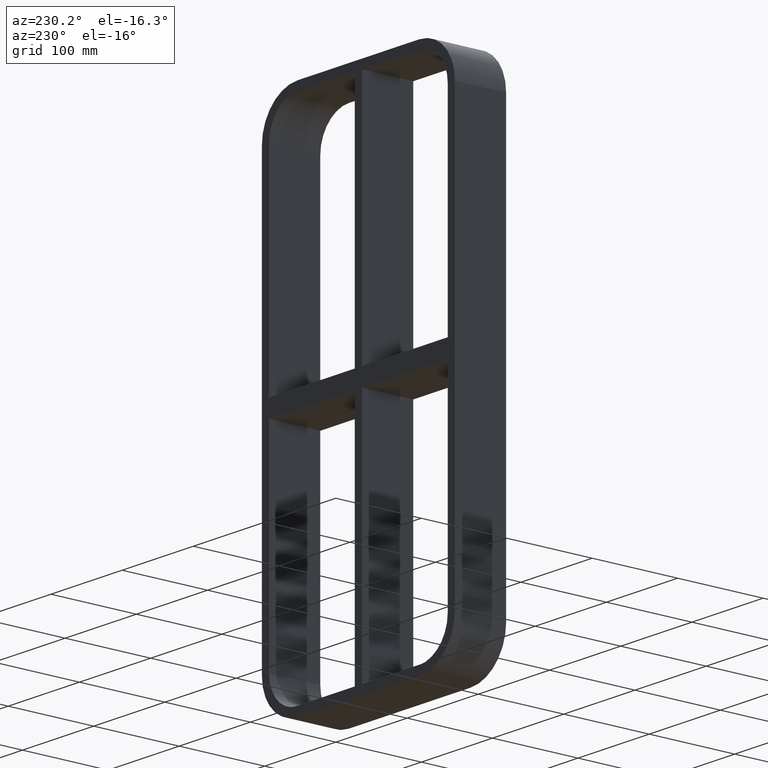
[diagram: clean part render]
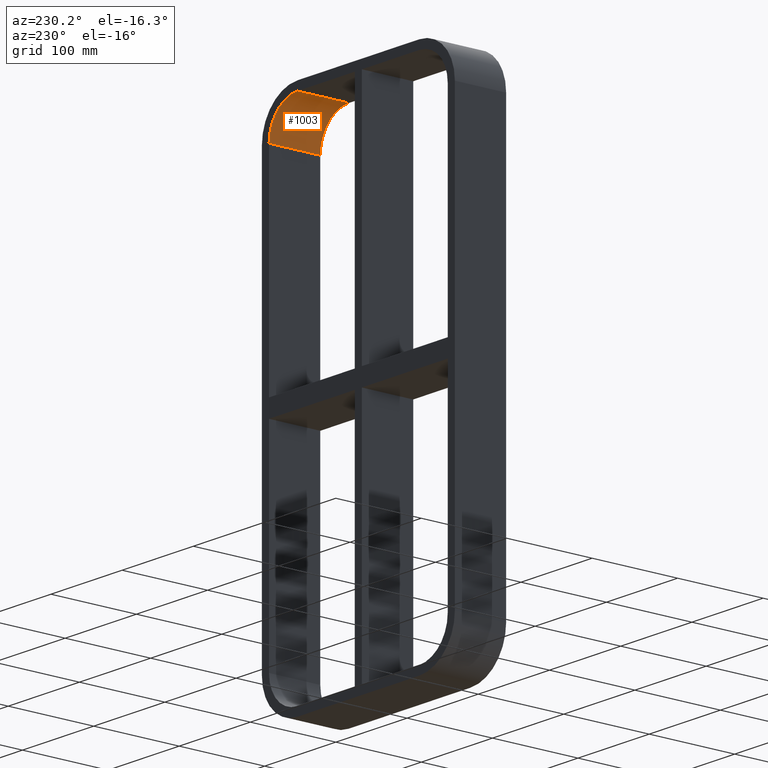
[diagram: same view with one face highlighted and labeled with its STEP entity id]
A machine part, auxiliary view. The second image highlights one B-rep face of the part: STEP entity #1003.
In plain terms, the highlighted cylindrical surface (partial cylindrical patch) has radius 40 mm, axis along (0, 1, 0).
Its self-contained STEP definition (entity closure, byte-faithful):
#296=CARTESIAN_POINT('',(125.50000000000004,-3.0,248.00000000000006));
#297=VERTEX_POINT('',#296);
#304=CARTESIAN_POINT('',(125.50000000000004,57.0,248.00000000000006));
#305=VERTEX_POINT('',#304);
#306=CARTESIAN_POINT('',(125.50000000000004,57.0,248.00000000000006));
#307=DIRECTION('',(0.0,-1.0,0.0));
#308=VECTOR('',#307,60.0);
#309=LINE('',#306,#308);
#310=EDGE_CURVE('',#305,#297,#309,.T.);
#431=CARTESIAN_POINT('',(85.500000000000043,57.0,288.00000000000006));
#432=VERTEX_POINT('',#431);
#433=CARTESIAN_POINT('',(85.500000000000043,57.0,248.00000000000006));
#434=DIRECTION('',(0.0,1.0,0.0));
#435=DIRECTION('',(0.707106781186547,0.0,0.707106781186547));
#436=AXIS2_PLACEMENT_3D('',#433,#434,#435);
#437=CIRCLE('',#436,39.999999999999993);
#438=EDGE_CURVE('',#432,#305,#437,.T.);
#663=CARTESIAN_POINT('',(85.500000000000043,-3.0,288.00000000000006));
#664=VERTEX_POINT('',#663);
#665=CARTESIAN_POINT('',(85.500000000000043,-3.0,288.00000000000006));
#666=DIRECTION('',(0.0,1.0,0.0));
#667=VECTOR('',#666,60.0);
#668=LINE('',#665,#667);
#669=EDGE_CURVE('',#664,#432,#668,.T.);
#850=CARTESIAN_POINT('',(85.500000000000043,-3.0,248.00000000000006));
#851=DIRECTION('',(0.0,-1.0,0.0));
#852=DIRECTION('',(0.707106781186547,0.0,0.707106781186547));
#853=AXIS2_PLACEMENT_3D('',#850,#851,#852);
#854=CIRCLE('',#853,39.999999999999993);
#855=EDGE_CURVE('',#297,#664,#854,.T.);
#992=CARTESIAN_POINT('',(85.500000000000043,0.0,248.00000000000006));
#993=DIRECTION('',(0.0,1.0,0.0));
#994=DIRECTION('',(0.707106781186547,0.0,0.707106781186547));
#995=AXIS2_PLACEMENT_3D('',#992,#993,#994);
#996=CYLINDRICAL_SURFACE('',#995,40.0);
#997=ORIENTED_EDGE('',*,*,#855,.T.);
#998=ORIENTED_EDGE('',*,*,#669,.T.);
#999=ORIENTED_EDGE('',*,*,#438,.T.);
#1000=ORIENTED_EDGE('',*,*,#310,.T.);
#1001=EDGE_LOOP('',(#997,#998,#999,#1000));
#1002=FACE_OUTER_BOUND('',#1001,.T.);
#1003=ADVANCED_FACE('',(#1002),#996,.F.);